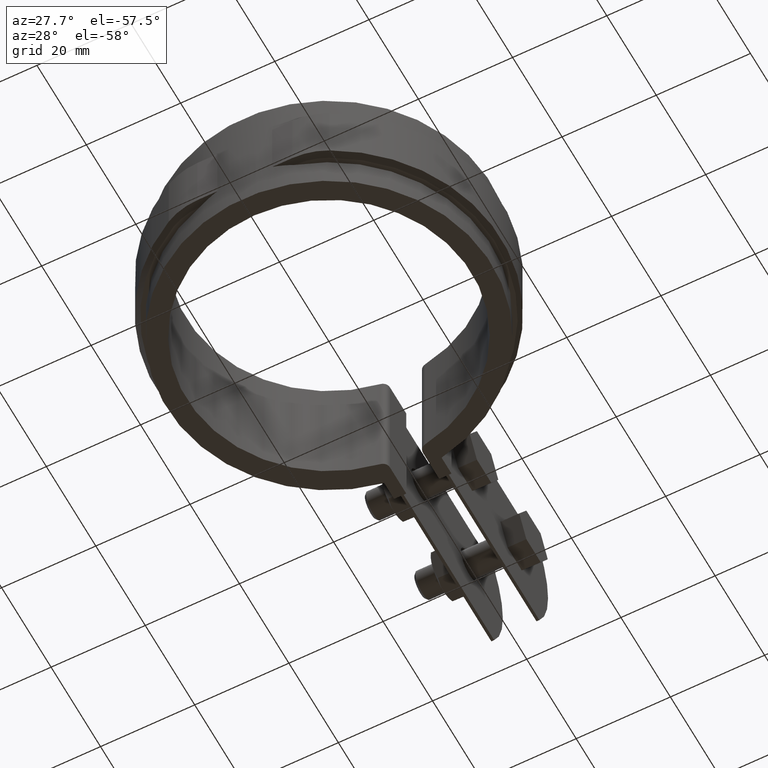
[diagram: clean part render]
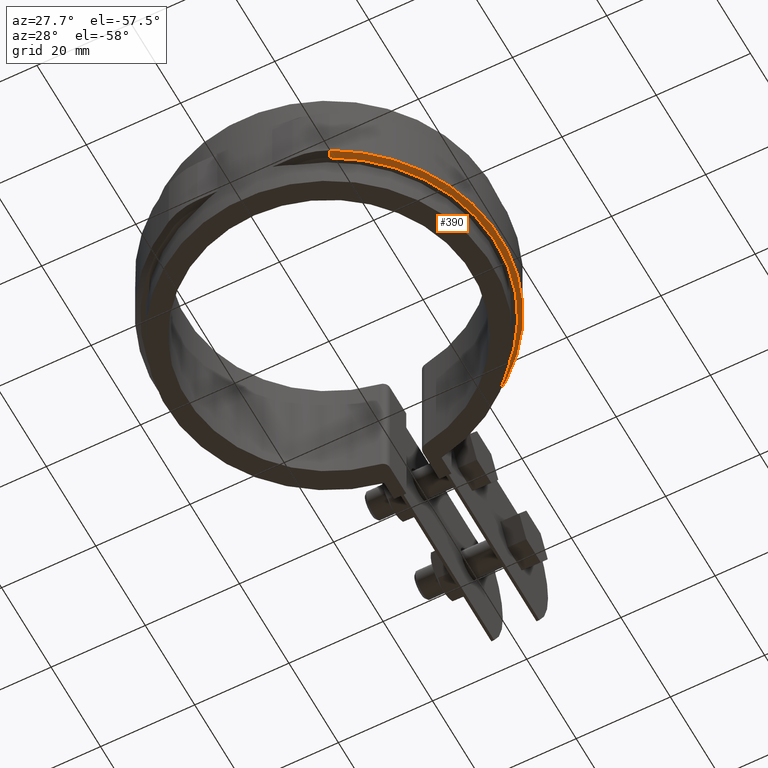
[diagram: same view with one face highlighted and labeled with its STEP entity id]
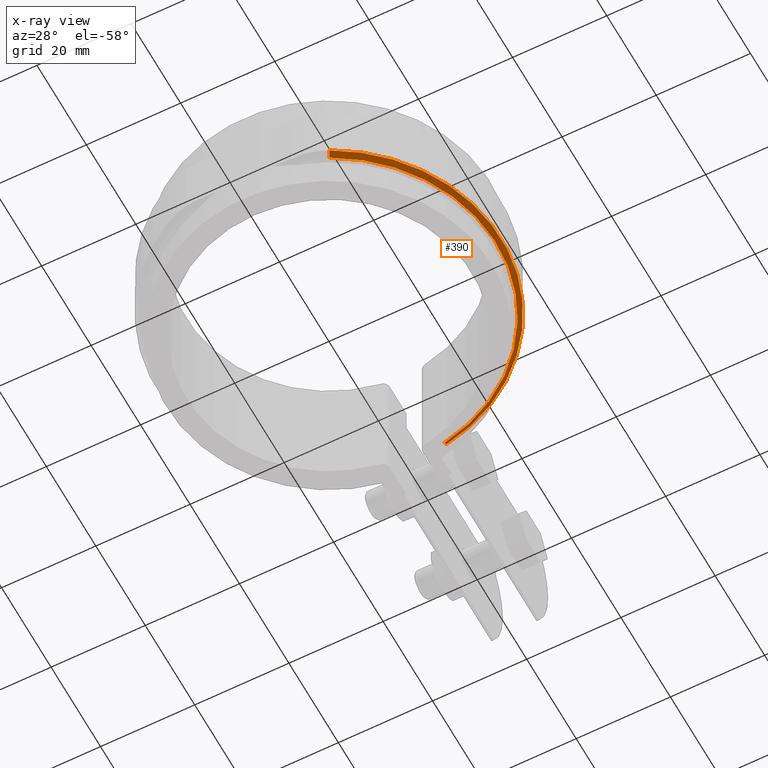
[diagram: x-ray of the same camera — body ghosted, the highlighted face saturated]
A machine part, auxiliary view. The second image highlights one B-rep face of the part: STEP entity #390.
The next image is the same camera in x-ray: the body ghosted, the highlighted face saturated — about 0% of this face is hidden behind the body in this view.
In plain terms, the highlighted conical surface has half-angle 45 deg.
Its self-contained STEP definition (entity closure, byte-faithful):
#390 = ADVANCED_FACE( '', ( #687 ), #688, .T. );
#687 = FACE_OUTER_BOUND( '', #1387, .T. );
#688 = CONICAL_SURFACE( '', #1388, 35.4950000000000, 0.785398163397448 );
#1387 = EDGE_LOOP( '', ( #3089, #3090, #3091, #3092 ) );
#1388 = AXIS2_PLACEMENT_3D( '', #3093, #3094, #3095 );
#3089 = ORIENTED_EDGE( '', *, *, #4663, .F. );
#3090 = ORIENTED_EDGE( '', *, *, #4704, .F. );
#3091 = ORIENTED_EDGE( '', *, *, #4705, .F. );
#3092 = ORIENTED_EDGE( '', *, *, #4706, .F. );
#3093 = CARTESIAN_POINT( '', ( -8.67361737988404E-016, -6.93889390390723E-015, -20.0000000000000 ) );
#3094 = DIRECTION( '', ( 0.000000000000000, 0.000000000000000, 1.00000000000000 ) );
#3095 = DIRECTION( '', ( 1.00000000000000, 0.000000000000000, 0.000000000000000 ) );
#4663 = EDGE_CURVE( '', #5354, #5356, #5357, .T. );
#4704 = EDGE_CURVE( '', #5430, #5354, #5431, .T. );
#4705 = EDGE_CURVE( '', #5432, #5430, #5433, .T. );
#4706 = EDGE_CURVE( '', #5356, #5432, #5434, .F. );
#5354 = VERTEX_POINT( '', #7732 );
#5356 = VERTEX_POINT( '', #7735 );
#5357 = B_SPLINE_CURVE_WITH_KNOTS( '', 3, ( #7736, #7737, #7738, #7739 ), .UNSPECIFIED., .F., .F., ( 4, 4 ), ( 0.000000000000000, 0.00142463140422703 ), .UNSPECIFIED. );
#5430 = VERTEX_POINT( '', #7843 );
#5431 = CIRCLE( '', #7844, 36.4950000000000 );
#5432 = VERTEX_POINT( '', #7845 );
#5433 = LINE( '', #7846, #7847 );
#5434 = CIRCLE( '', #7848, 35.4950000000000 );
#7732 = CARTESIAN_POINT( '', ( 6.10000000000000, 35.9815928635740, -19.0000000000000 ) );
#7735 = CARTESIAN_POINT( '', ( 6.10000000000000, 34.9669132895656, -20.0000000000000 ) );
#7736 = CARTESIAN_POINT( '', ( 6.10000000000000, 35.9815928635740, -19.0000000000000 ) );
#7737 = CARTESIAN_POINT( '', ( 6.10000000000000, 35.6434338564472, -19.3334018281295 ) );
#7738 = CARTESIAN_POINT( '', ( 6.10000000000001, 35.3052092475881, -19.6667371339517 ) );
#7739 = CARTESIAN_POINT( '', ( 6.10000000000001, 34.9669132895656, -20.0000000000000 ) );
#7843 = CARTESIAN_POINT( '', ( 17.0660060463684, -32.2588974180042, -19.0000000000000 ) );
#7844 = AXIS2_PLACEMENT_3D( '', #9294, #9295, #9296 );
#7845 = CARTESIAN_POINT( '', ( 16.5983801785408, -31.3749709234706, -20.0000000000000 ) );
#7846 = CARTESIAN_POINT( '', ( 16.5983801785408, -31.3749709234706, -20.0000000000000 ) );
#7847 = VECTOR( '', #9297, 1000.00000000000 );
#7848 = AXIS2_PLACEMENT_3D( '', #9298, #9299, #9300 );
#9294 = CARTESIAN_POINT( '', ( -8.67361737988404E-016, -6.93889390390723E-015, -19.0000000000000 ) );
#9295 = DIRECTION( '', ( 0.000000000000000, 0.000000000000000, 1.00000000000000 ) );
#9296 = DIRECTION( '', ( 1.00000000000000, 0.000000000000000, 0.000000000000000 ) );
#9297 = DIRECTION( '', ( 0.330661422199140, -0.625030418355173, 0.707106781186547 ) );
#9298 = CARTESIAN_POINT( '', ( -8.67361737988404E-016, -6.93889390390723E-015, -20.0000000000000 ) );
#9299 = DIRECTION( '', ( 0.000000000000000, 0.000000000000000, 1.00000000000000 ) );
#9300 = DIRECTION( '', ( 1.00000000000000, 0.000000000000000, 0.000000000000000 ) );